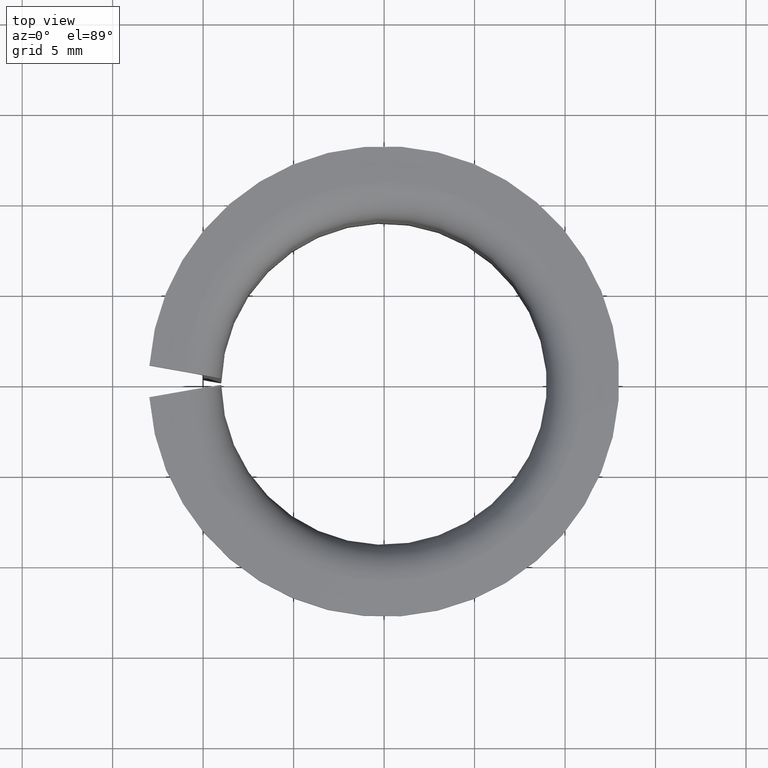
[diagram: clean part render]
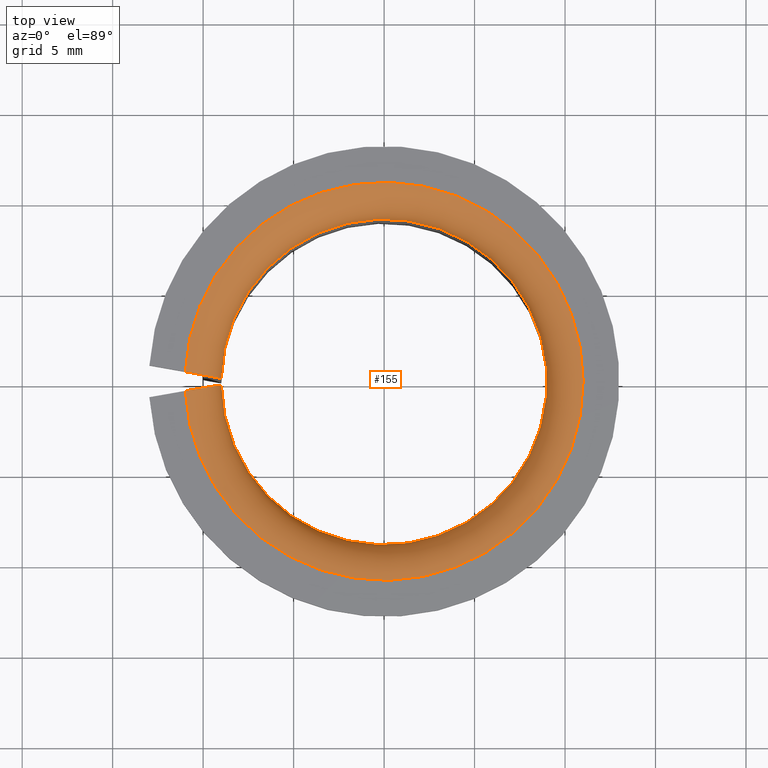
[diagram: same view with one face highlighted and labeled with its STEP entity id]
A machine part, top view. The second image highlights one B-rep face of the part: STEP entity #155.
In plain terms, the highlighted toroidal blend (fillet) surface has major radius 11 mm and minor (blend) radius 2 mm.
Its self-contained STEP definition (entity closure, byte-faithful):
#155=ADVANCED_FACE('',(#171),#172,.T.);
#171=FACE_OUTER_BOUND('',#196,.T.);
#172=TOROIDAL_SURFACE('',#197,0.011,0.002);
#196=EDGE_LOOP('',(#236,#237,#238,#239));
#197=AXIS2_PLACEMENT_3D('',#240,#241,#242);
#236=ORIENTED_EDGE('',*,*,#325,.T.);
#237=ORIENTED_EDGE('',*,*,#326,.T.);
#238=ORIENTED_EDGE('',*,*,#327,.F.);
#239=ORIENTED_EDGE('',*,*,#312,.F.);
#240=CARTESIAN_POINT('',(0.0,0.0,0.015));
#241=DIRECTION('',(0.0,-6.12323399573677E-017,-1.0));
#242=DIRECTION('',(0.0,1.0,-6.12323399573677E-017));
#312=EDGE_CURVE('',#342,#343,#344,.T.);
#325=EDGE_CURVE('',#342,#367,#368,.T.);
#326=EDGE_CURVE('',#367,#369,#370,.T.);
#327=EDGE_CURVE('',#343,#369,#371,.T.);
#342=VERTEX_POINT('',#392);
#343=VERTEX_POINT('',#393);
#344=B_SPLINE_CURVE_WITH_KNOTS('',3,(#394,#395,#396,#397,#398,#399,#400,#401,#402,#403,#404,#405,#406,#407),.UNSPECIFIED.,.F.,.F.,(4,2,2,2,2,2,4),(1.97146796340458E-007,0.000392629396224663,0.000785061645652985,0.00117749389508131,0.00156992614450963,0.00235479064336627,0.00313965514222291),.UNSPECIFIED.);
#367=VERTEX_POINT('',#452);
#368=CIRCLE('',#453,0.009);
#369=VERTEX_POINT('',#454);
#370=B_SPLINE_CURVE_WITH_KNOTS('',3,(#455,#456,#457,#458,#459,#460,#461,#462,#463,#464,#465,#466,#467,#468),.UNSPECIFIED.,.F.,.F.,(4,2,2,2,2,2,4),(1.97146796340458E-007,0.000392629396224663,0.000785061645652985,0.00117749389508131,0.00156992614450963,0.00235479064336627,0.00313965514222291),.UNSPECIFIED.);
#371=CIRCLE('',#469,0.011);
#392=CARTESIAN_POINT('',(0.00899827848821545,-0.00017602343173324,0.015));
#393=CARTESIAN_POINT('',(0.0109873804139217,-0.000526755768614425,0.017));
#394=CARTESIAN_POINT('',(0.00899827848821545,-0.000176023431733241,0.015));
#395=CARTESIAN_POINT('',(0.00899827848821545,-0.000176023431733241,0.0151327027598317));
#396=CARTESIAN_POINT('',(0.009011313104869,-0.000178321786332455,0.0152631462580258));
#397=CARTESIAN_POINT('',(0.0090623440155144,-0.000187319912729362,0.0155197067013958));
#398=CARTESIAN_POINT('',(0.00910098482158335,-0.00019413332939564,0.0156471812173767));
#399=CARTESIAN_POINT('',(0.00920156248713464,-0.000211867885489005,0.0158897375650331));
#400=CARTESIAN_POINT('',(0.00926305979009853,-0.000222711519242341,0.0160047109125508));
#401=CARTESIAN_POINT('',(0.00940821471688992,-0.000248306249218426,0.0162221923048572));
#402=CARTESIAN_POINT('',(0.00949246000467102,-0.000263160966451783,0.0163248593110095));
#403=CARTESIAN_POINT('',(0.00976805187156391,-0.000311755248248816,0.016600731564796));
#404=CARTESIAN_POINT('',(0.00998965439959793,-0.000350829752934417,0.0167489639091345));
#405=CARTESIAN_POINT('',(0.0104665012420696,-0.00043491071692781,0.0169473713973998));
#406=CARTESIAN_POINT('',(0.0107262661630752,-0.000480714281142692,0.017));
#407=CARTESIAN_POINT('',(0.0109873804139217,-0.000526755768614425,0.017));
#452=CARTESIAN_POINT('',(0.00899827848821545,0.000176023431733242,0.015));
#453=AXIS2_PLACEMENT_3D('',#518,#519,#520);
#454=CARTESIAN_POINT('',(0.0109873804139217,0.00052675576861443,0.017));
#455=CARTESIAN_POINT('',(0.00899827848821545,0.000176023431733244,0.015));
#456=CARTESIAN_POINT('',(0.00899827848821545,0.000176023431733244,0.0151327027598317));
#457=CARTESIAN_POINT('',(0.009011313104869,0.000178321786332458,0.0152631462580258));
#458=CARTESIAN_POINT('',(0.0090623440155144,0.000187319912729365,0.0155197067013958));
#459=CARTESIAN_POINT('',(0.00910098482158335,0.000194133329395643,0.0156471812173767));
#460=CARTESIAN_POINT('',(0.00920156248713464,0.000211867885489008,0.0158897375650331));
#461=CARTESIAN_POINT('',(0.00926305979009853,0.000222711519242344,0.0160047109125508));
#462=CARTESIAN_POINT('',(0.00940821471688992,0.000248306249218429,0.0162221923048572));
#463=CARTESIAN_POINT('',(0.00949246000467102,0.000263160966451787,0.0163248593110095));
#464=CARTESIAN_POINT('',(0.00976805187156391,0.000311755248248819,0.016600731564796));
#465=CARTESIAN_POINT('',(0.00998965439959793,0.00035082975293442,0.0167489639091345));
#466=CARTESIAN_POINT('',(0.0104665012420696,0.000434910716927813,0.0169473713973998));
#467=CARTESIAN_POINT('',(0.0107262661630752,0.000480714281142696,0.017));
#468=CARTESIAN_POINT('',(0.0109873804139217,0.000526755768614428,0.017));
#469=AXIS2_PLACEMENT_3D('',#521,#522,#523);
#518=CARTESIAN_POINT('',(0.0,0.0,0.015));
#519=DIRECTION('',(0.0,-6.12323399573677E-017,-1.0));
#520=DIRECTION('',(0.0,1.0,-6.12323399573677E-017));
#521=CARTESIAN_POINT('',(0.0,0.0,0.017));
#522=DIRECTION('',(0.0,-6.12323399573677E-017,-1.0));
#523=DIRECTION('',(0.0,1.0,-6.12323399573677E-017));